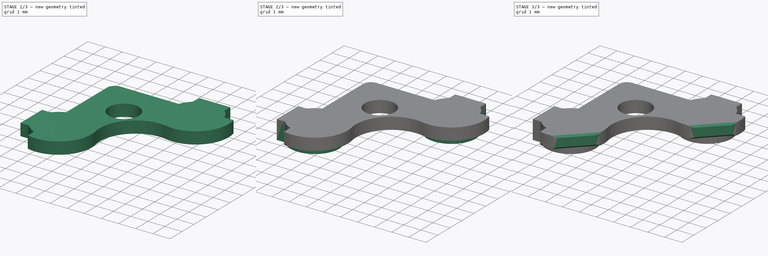
[diagram: build sequence overview — one tinted view per stage of 3, left to right]
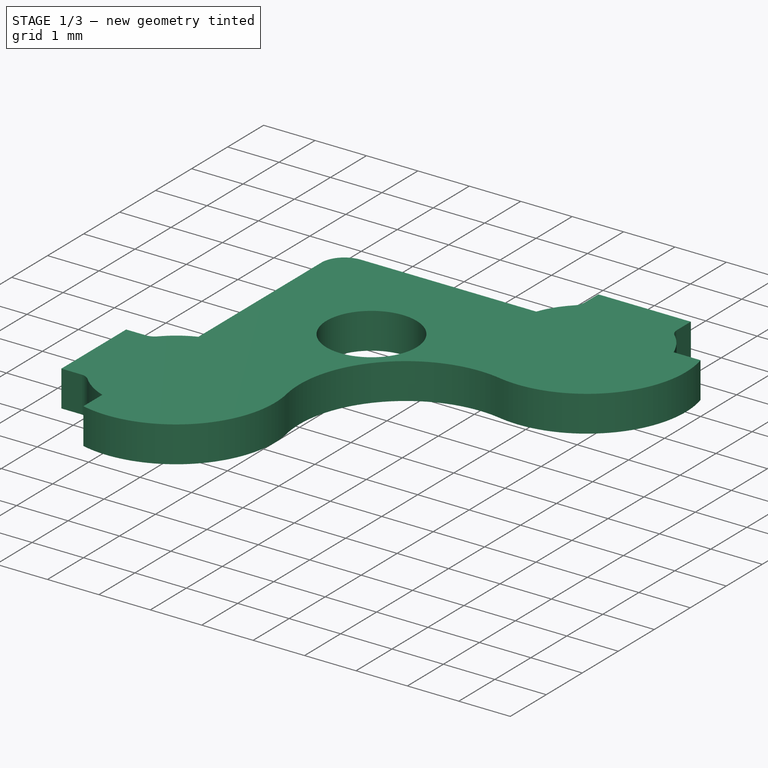
[diagram: stage 1 of 3 — iso view after this stage's code; geometry added in this stage tinted green]
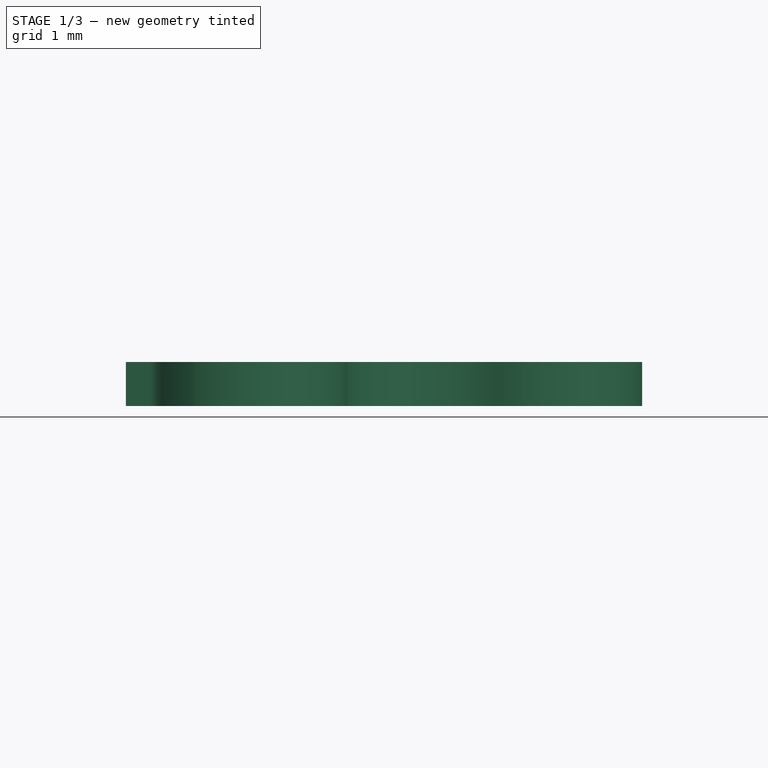
[diagram: stage 1 of 3 — front view after this stage's code; geometry added in this stage tinted green]
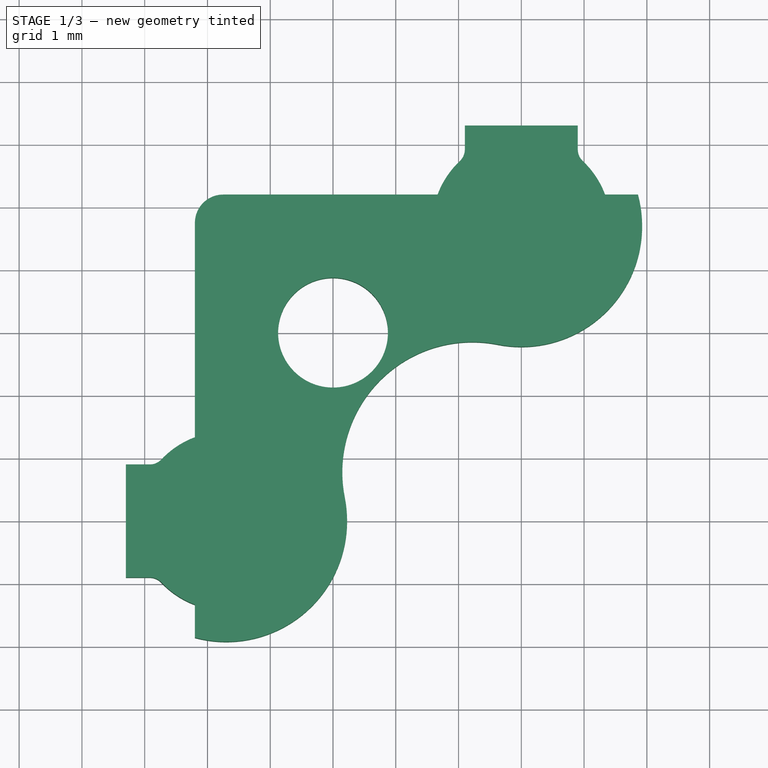
[diagram: stage 1 of 3 — top view after this stage's code; geometry added in this stage tinted green]
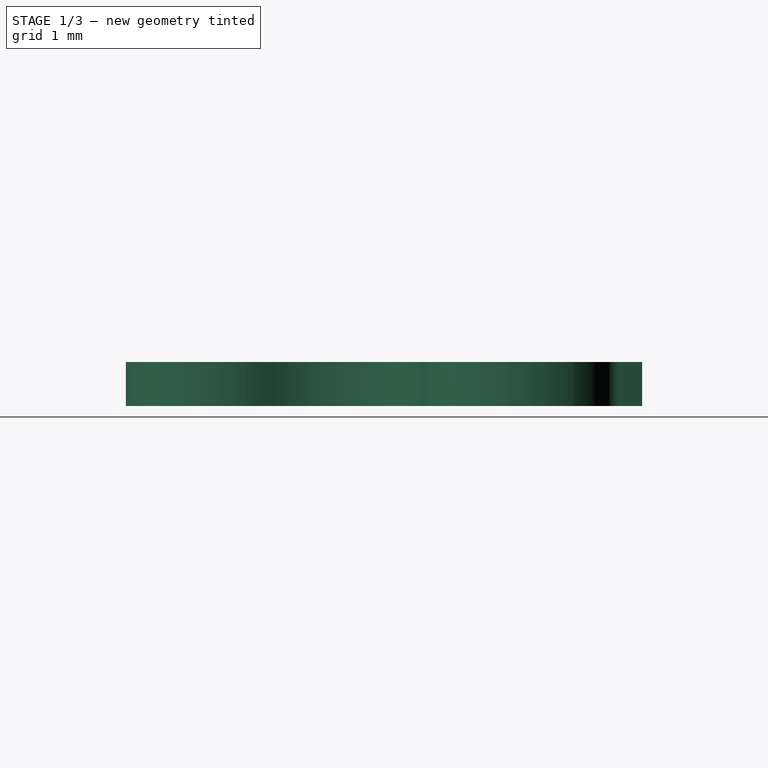
[diagram: stage 1 of 3 — right view after this stage's code; geometry added in this stage tinted green]
FCSTD DOCUMENT  (FreeCAD 1.0R38641 +468 (Git))
Label: PLASTIC-MAGNET-COVER
License: All rights reserved
LicenseURL: http://en.wikipedia.org/wiki/All_rights_reserved
objects: Sketcher::SketchObject×4, Spreadsheet::Sheet×2, PartDesign::Pad×2, PartDesign::Pocket×2, PartDesign::Chamfer×1, PartDesign::Body×1
note: 24 computed .brp shape members not serialized (recipe doc carries the construction recipe); baked Part::Feature solids carry a one-line shape summary decoded from their .brp

FEATURE [Spreadsheet::Sheet] Spreadsheet  label="Generic"
  cells = A1='Dimension; B1(dimension)==106.6 mm; A2='Corner Radius; B2(cornerRadius)=2; C2='(mm); A3='Screw Diameter; B3(screwDiameter)=2.2; C3='(mm); A4='Screw Diameter Plastic; B4(screwDiameterPlastic)=2.8; C4='(mm); A5='Screw Distance; B5(screwDistance)=101; C5='(mm)
FEATURE [Spreadsheet::Sheet] Spreadsheet001  label="Unibody"
  cells = A1='Height; B1(height)=15; C1='(mm); A5='Rib Length; B5(ribLength)=5; A6='Rib Width; B6(ribWidth)=1.5; A7='Rib Height; B7(ribHeight)=2.8; A8='Rib Dist 1; B8(ribDist1)=19.05; A9='Rib Dist 2; B9(ribDist2)=34.29; C9==1.35 in; A12='PCB Dimensions; B12(pcbDimensions)=100; A13='PCB Thickness; B13(pcbThickness)=1.6; A16='Feet Diameter; B16(feetDiameter)=10; A17='Feet Distance; B17(feetDistance)=85; A18='Feet Depth; B18(feetDepth)=0.5; A19='Feet Thickness; B19(feetThickness)=1
FEATURE [Sketcher::SketchObject] Sketch493
  ArcFitTolerance = 0
  AttachmentOffset = pos=(50,-50,0.5) rot=(0,0,1;0rad)
  AttachmentSupport = -> [XY_Plane137]
  FullyConstrained = true
  MakeInternals = false
  MapMode = 5
  Placement = pos=(50,-50,0.5) rot=(0,0,1;0rad)
  expr: Constraints[60] = 2 - 0.25
  expr: Constraints[75] = 4 - 0.15
  sketch-geometry (36):
    g0: LineSegment StartX=-53.3 StartY=47.9 StartZ=0 EndX=-53.3 EndY=46.1 EndZ=0
    g1: LineSegment StartX=-53.3 StartY=46.1 StartZ=0 EndX=-52.9178 EndY=46.1 EndZ=0
    g2: ArcOfCircle CenterX=-52.9178 CenterY=45.85 CenterZ=0 NormalX=0 NormalY=0 NormalZ=1 AngleXU=0 Radius=0.25 StartAngle=0.756757 EndAngle=1.5708
    g3: LineSegment StartX=-46.1 StartY=53.3 StartZ=0 EndX=-46.1 EndY=52.9178 EndZ=0
    g4: ArcOfCircle CenterX=-45.85 CenterY=52.9178 CenterZ=0 NormalX=0 NormalY=0 NormalZ=1 AngleXU=0 Radius=0.25 StartAngle=3.14159 EndAngle=3.95563
    g5: LineSegment StartX=-47.9 StartY=53.3 StartZ=0 EndX=-47.9 EndY=52.9178 EndZ=0
    g6: ArcOfCircle CenterX=-48.15 CenterY=52.9178 CenterZ=0 NormalX=0 NormalY=0 NormalZ=1 AngleXU=0 Radius=0.25 StartAngle=5.46915 EndAngle=6.28319
    g7: ArcOfCircle CenterX=-47 CenterY=51.7 CenterZ=0 NormalX=0 NormalY=0 NormalZ=1 AngleXU=0 Radius=1.425 StartAngle=2.32755 EndAngle=2.78308
    g8: LineSegment StartX=-48.3344 StartY=52.2 StartZ=0 EndX=-51.75 EndY=52.2 EndZ=0
    g9: LineSegment StartX=-52.2 StartY=51.75 StartZ=0 EndX=-52.2 EndY=48.3344 EndZ=0
    g10: Circle CenterX=-50 CenterY=50 CenterZ=0 NormalX=0 NormalY=0 NormalZ=1 AngleXU=0 Radius=0.875
    g11: LineSegment [constr] StartX=-47 StartY=51.7 StartZ=0 EndX=0 EndY=51.7 EndZ=0
    g12: LineSegment [constr] StartX=-47 StartY=51.7 StartZ=0 EndX=-47 EndY=0 EndZ=0
    g13: LineSegment [constr] StartX=-51.7 StartY=47 StartZ=0 EndX=-51.7 EndY=0 EndZ=0
    g14: LineSegment [constr] StartX=-51.7 StartY=47 StartZ=0 EndX=0 EndY=47 EndZ=0
    g15: LineSegment StartX=-47.9 StartY=53.3 StartZ=0 EndX=-46.1 EndY=53.3 EndZ=0
    g16: LineSegment [constr] StartX=-47.9 StartY=53.3 StartZ=0 EndX=-47 EndY=51.7 EndZ=0
    g17: LineSegment [constr] StartX=-47 StartY=51.7 StartZ=0 EndX=-46.1 EndY=53.3 EndZ=0
    g18: ArcOfCircle CenterX=-51.7 CenterY=47 CenterZ=0 NormalX=0 NormalY=0 NormalZ=1 AngleXU=0 Radius=1.425 StartAngle=1.9293 EndAngle=2.38484
    g19: ArcOfCircle CenterX=-52.9178 CenterY=48.15 CenterZ=0 NormalX=0 NormalY=0 NormalZ=1 AngleXU=0 Radius=0.25 StartAngle=4.71239 EndAngle=5.52643
    g20: LineSegment StartX=-52.9178 StartY=47.9 StartZ=0 EndX=-53.3 EndY=47.9 EndZ=0
    g21: LineSegment [constr] StartX=-53.3 StartY=47.9 StartZ=0 EndX=-51.7 EndY=47 EndZ=0
    g22: LineSegment [constr] StartX=-51.7 StartY=47 StartZ=0 EndX=-53.3 EndY=46.1 EndZ=0
    g23: LineSegment [constr] StartX=-50 StartY=50 StartZ=0 EndX=-47 EndY=51.7 EndZ=0
    g24: LineSegment [constr] StartX=-51.7 StartY=47 StartZ=0 EndX=-50 EndY=50 EndZ=0
    g25: ArcOfCircle CenterX=-51.7 CenterY=47 CenterZ=0 NormalX=0 NormalY=0 NormalZ=1 AngleXU=0 Radius=1.425 StartAngle=3.89835 EndAngle=4.35388
    g26: ArcOfCircle CenterX=-47 CenterY=51.7 CenterZ=0 NormalX=0 NormalY=0 NormalZ=1 AngleXU=0 Radius=1.425 StartAngle=0.358508 EndAngle=0.814039
    g27: LineSegment StartX=-52.2 StartY=45.6656 StartZ=0 EndX=-52.2 EndY=45.1411 EndZ=0
    g28: LineSegment StartX=-45.6656 StartY=52.2 StartZ=0 EndX=-45.1411 EndY=52.2 EndZ=0
    g29: LineSegment [constr] StartX=-47 StartY=51.7 StartZ=0 EndX=-47.3757 EndY=49.812 EndZ=0
    g30: ArcOfCircle CenterX=-47 CenterY=51.7 CenterZ=0 NormalX=0 NormalY=0 NormalZ=1 AngleXU=0 Radius=1.925 StartAngle=4.51597 EndAngle=6.54594
    g31: ArcOfCircle CenterX=-47.78 CenterY=47.78 CenterZ=0 NormalX=0 NormalY=0 NormalZ=1 AngleXU=0 Radius=2.07185 StartAngle=1.37438 EndAngle=3.33801
    g32: ArcOfCircle CenterX=-51.7 CenterY=47 CenterZ=0 NormalX=0 NormalY=0 NormalZ=1 AngleXU=0 Radius=1.925 StartAngle=4.44964 EndAngle=6.4796
    g33: LineSegment [constr] StartX=-48.3344 StartY=52.2 StartZ=0 EndX=-45.6656 EndY=52.2 EndZ=0
    g34: LineSegment [constr] StartX=-52.2 StartY=48.3344 StartZ=0 EndX=-52.2 EndY=45.6656 EndZ=0
    g35: ArcOfCircle CenterX=-51.75 CenterY=51.75 CenterZ=0 NormalX=0 NormalY=0 NormalZ=1 AngleXU=0 Radius=0.45 StartAngle=1.5708 EndAngle=3.14159
  constraints (95):
    c: Vertical(g0)
    c: Coincident(g0,g1)
    c: Horizontal(g1)
    c: Tangent(g1,g2) = 1.5708
    c: Tangent(g2,g25) = 1.5708
    c: Tangent(g3,g4) = -1.5708
    c: Tangent(g4,g26) = 1.5708
    c: Vertical(g5)
    c: Tangent(g5,g6) = 1.5708
    c: Tangent(g6,g7) = 1.5708
    c: Coincident(g8,g7)
    c: Horizontal(g8)
    c: Vertical(g9)
    c: PointOnObject(g11,g-2)
    c: Horizontal(g11)
    c: PointOnObject(g12,g-1)
    c: Vertical(g12)
    c: Coincident(g13,g25)
    c: PointOnObject(g13,g-1)
    c: Vertical(g13)
    c: Coincident(g14,g25)
    c: PointOnObject(g14,g-2)
    c: Horizontal(g14)
    c: Coincident(g5,g15)
    c: Coincident(g15,g3)
    c: Horizontal(g15)
    c: Vertical(g3)
    c: DistanceX(g11,g11) = 47
    c: Equal(g11,g13)
    c: DistanceY(g12,g12) = 51.7
    c: Coincident(g5,g16)
    c: Coincident(g16,g17)
    c: Coincident(g17,g3)
    c: Equal(g16,g17)
    c: DistanceY(g-1,g3) = 53.3
    c: Equal(g14,g12)
    c: Coincident(g18,g25)
    c: Coincident(g18,g9)
    c: Tangent(g19,g18) = 1.5708
    c: Horizontal(g20)
    c: Tangent(g20,g19) = 1.5708
    c: Coincident(g0,g20)
    c: DistanceX(g15,g15) = 1.8
    c: Coincident(g0,g21)
    c: Coincident(g21,g25)
    c: Coincident(g21,g22)
    c: Coincident(g22,g0)
    c: Equal(g22,g21)
    c: Equal(g0,g15)
    c: Equal(g16,g21)
    c: Equal(g20,g5)
    c: Equal(g5,g3)
    c: Equal(g3,g1)
    c: Radius(g6) = 0.25
    c: Equal(g8,g9)
    c: Coincident(g23,g10)
    c: Coincident(g24,g25)
    c: Coincident(g24,g10)
    c: Equal(g24,g23)
    c: DistanceX(g10,g-1) = 50
    c: Diameter(g10) = 1.75
    c: DistanceY(g-1,g7) = 52.2
    c: Equal(g18,g25)
    c: Diameter(g26) = 2.85
    c: Equal(g26,g7)
    c: Equal(g25,g26)
    c: Coincident(g27,g25)
    c: Vertical(g27)
    c: Coincident(g28,g26)
    c: Horizontal(g28)
    c: Coincident(g29,g7)
    c: Coincident(g30,g7)
    c: Coincident(g30,g28)
    c: Coincident(g30,g29)
    c: Tangent(g31,g30) = 1.5708
    c: Diameter(g30) = 3.85
    c: Coincident(g7,g16)
    c: Coincident(g26,g11)
    c: Coincident(g7,g26)
    c: Coincident(g7,g12)
    c: Coincident(g32,g18)
    c: Coincident(g32,g27)
    c: Equal(g32,g30)
    c: Tangent(g31,g32) = 1.5708
    c: Coincident(g33,g7)
    c: Coincident(g33,g26)
    c: Horizontal(g33)
    c: Coincident(g34,g9)
    c: Coincident(g34,g25)
    c: Vertical(g34)
    c: Coincident(g23,g7)
    c: Tangent(g9,g35) = -1.5708
    c: Tangent(g8,g35) = -1.5708
    c: Radius(g35) = 0.45
    c: DistanceX(g31,g-1) = 47.78
FEATURE [PartDesign::Pad] Pad402
  Direction = (0,0,1)
  Length = 2
  Length2 = 10
  Midplane = true
  Profile = -> Sketch493
  ReferenceAxis = -> Sketch493 [N_Axis]
  Suppressed = false
  Type = 0
FEATURE [Sketcher::SketchObject] Sketch494
  ArcFitTolerance = 0
  AttachmentOffset = pos=(50,-50,1.5) rot=(0,0,1;0rad)
  AttachmentSupport = -> [XY_Plane137]
  FullyConstrained = true
  MakeInternals = false
  MapMode = 5
  Placement = pos=(50,-50,1.5) rot=(0,0,1;0rad)
  sketch-geometry (5):
    g0: LineSegment StartX=0 StartY=0 StartZ=0 EndX=-100 EndY=0 EndZ=0
    g1: LineSegment StartX=-100 StartY=0 StartZ=0 EndX=-100 EndY=51.8 EndZ=0
    g2: LineSegment StartX=-51.8 StartY=100 StartZ=0 EndX=0 EndY=100 EndZ=0
    g3: LineSegment StartX=0 StartY=100 StartZ=0 EndX=0 EndY=0 EndZ=0
    g4: ArcOfCircle CenterX=-51.8 CenterY=51.8 CenterZ=0 NormalX=0 NormalY=0 NormalZ=1 AngleXU=0 Radius=48.2 StartAngle=1.5708 EndAngle=3.14159
  constraints (13):
    c: Coincident(g0,g1)
    c: Coincident(g2,g3)
    c: Coincident(g3,g0)
    c: Horizontal(g0)
    c: Horizontal(g2)
    c: Vertical(g1)
    c: Vertical(g3)
    c: Coincident(g0,g-1)
    c: Tangent(g1,g4) = 1.5708
    c: Tangent(g2,g4) = 1.5708
    c: Equal(g1,g2)
    c: DistanceY(g3,g3) = 100
    c: DistanceX(g4,g0) = 51.8
FEATURE [PartDesign::Pocket] Pocket036
  BaseFeature = -> Pad402
  Direction = (0,0,-1)
  Length = 1.3
  Length2 = 5
  Profile = -> Sketch494
  ReferenceAxis = -> Sketch494 [N_Axis]
  Suppressed = false
  Type = 0
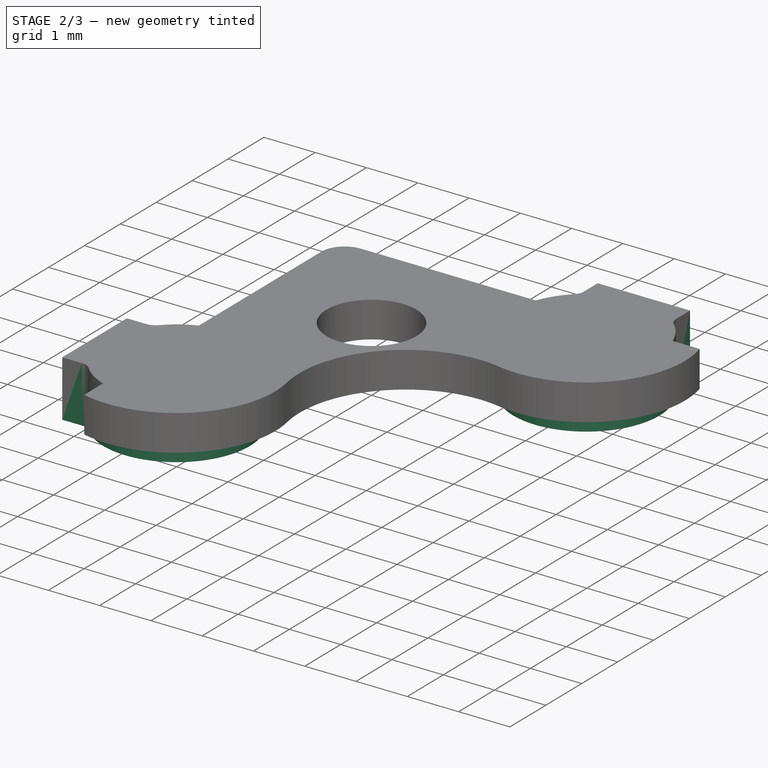
[diagram: stage 2 of 3 — iso view after this stage's code; geometry added in this stage tinted green]
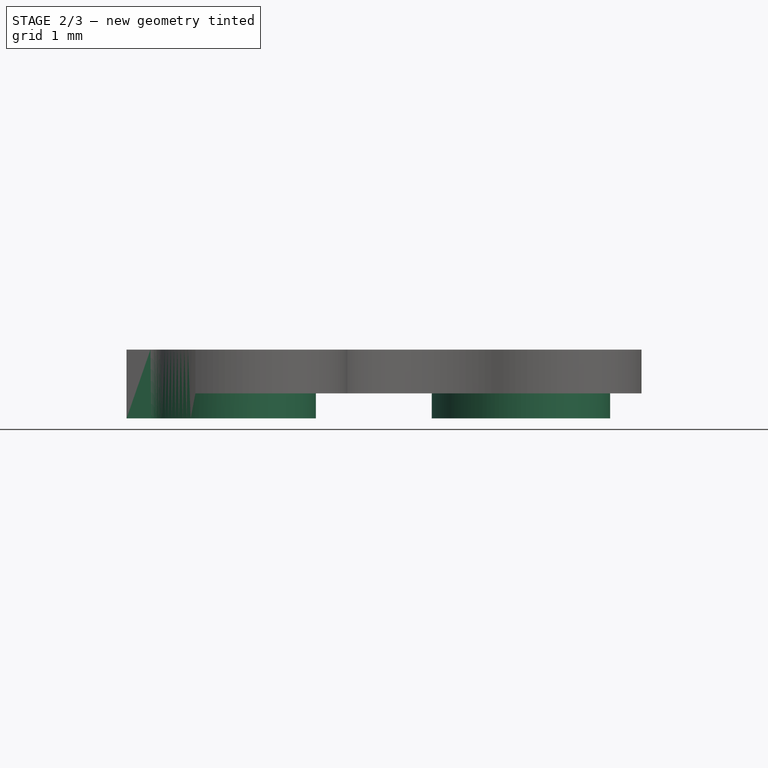
[diagram: stage 2 of 3 — front view after this stage's code; geometry added in this stage tinted green]
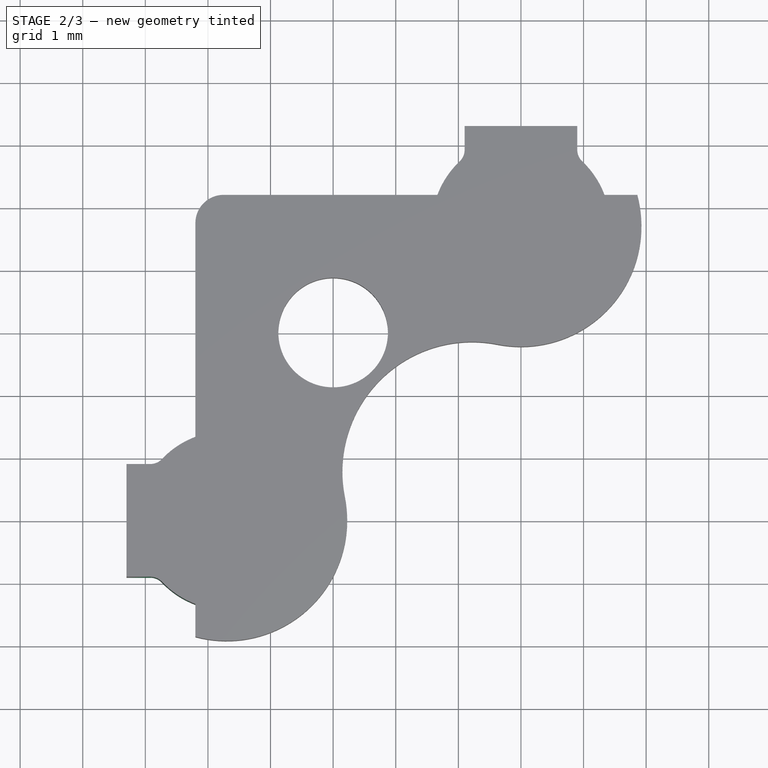
[diagram: stage 2 of 3 — top view after this stage's code; geometry added in this stage tinted green]
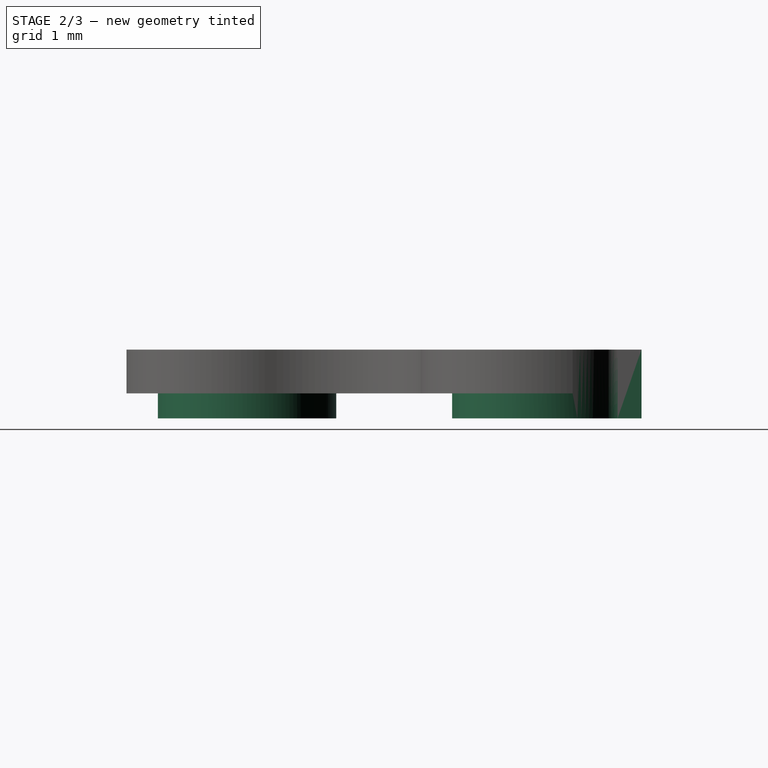
[diagram: stage 2 of 3 — right view after this stage's code; geometry added in this stage tinted green]
FEATURE [Sketcher::SketchObject] Sketch497
  ArcFitTolerance = 0
  AttachmentOffset = pos=(50,-50,0) rot=(0,0,1;0rad)
  AttachmentSupport = -> [XY_Plane137]
  FullyConstrained = true
  MakeInternals = false
  MapMode = 5
  Placement = pos=(50,-50,0) rot=(0,0,1;0rad)
  sketch-geometry (23):
    g0: LineSegment StartX=-53.3 StartY=47.9 StartZ=0 EndX=-53.3 EndY=46.1 EndZ=0
    g1: LineSegment StartX=-53.3 StartY=46.1 StartZ=0 EndX=-52.9178 EndY=46.1 EndZ=0
    g2: ArcOfCircle CenterX=-52.9178 CenterY=45.85 CenterZ=0 NormalX=0 NormalY=0 NormalZ=1 AngleXU=0 Radius=0.25 StartAngle=0.756757 EndAngle=1.5708
    g3: LineSegment StartX=-46.1 StartY=53.3 StartZ=0 EndX=-46.1 EndY=52.9178 EndZ=0
    g4: ArcOfCircle CenterX=-45.85 CenterY=52.9178 CenterZ=0 NormalX=0 NormalY=0 NormalZ=1 AngleXU=0 Radius=0.25 StartAngle=3.14159 EndAngle=3.95563
    g5: LineSegment StartX=-47.9 StartY=53.3 StartZ=0 EndX=-47.9 EndY=52.9178 EndZ=0
    g6: ArcOfCircle CenterX=-48.15 CenterY=52.9178 CenterZ=0 NormalX=0 NormalY=0 NormalZ=1 AngleXU=0 Radius=0.25 StartAngle=5.46915 EndAngle=6.28319
    g7: Circle [constr] CenterX=-50 CenterY=50 CenterZ=0 NormalX=0 NormalY=0 NormalZ=1 AngleXU=0 Radius=1
    g8: LineSegment [constr] StartX=-47 StartY=51.7 StartZ=0 EndX=0 EndY=51.7 EndZ=0
    g9: LineSegment [constr] StartX=-47 StartY=51.7 StartZ=0 EndX=-47 EndY=0 EndZ=0
    g10: LineSegment [constr] StartX=-51.7 StartY=47 StartZ=0 EndX=-51.7 EndY=0 EndZ=0
    g11: LineSegment [constr] StartX=-51.7 StartY=47 StartZ=0 EndX=0 EndY=47 EndZ=0
    g12: LineSegment StartX=-47.9 StartY=53.3 StartZ=0 EndX=-46.1 EndY=53.3 EndZ=0
    g13: LineSegment [constr] StartX=-47.9 StartY=53.3 StartZ=0 EndX=-47 EndY=51.7 EndZ=0
    g14: LineSegment [constr] StartX=-47 StartY=51.7 StartZ=0 EndX=-46.1 EndY=53.3 EndZ=0
    g15: ArcOfCircle CenterX=-52.9178 CenterY=48.15 CenterZ=0 NormalX=0 NormalY=0 NormalZ=1 AngleXU=0 Radius=0.25 StartAngle=4.71239 EndAngle=5.52643
    g16: LineSegment StartX=-52.9178 StartY=47.9 StartZ=0 EndX=-53.3 EndY=47.9 EndZ=0
    g17: LineSegment [constr] StartX=-53.3 StartY=47.9 StartZ=0 EndX=-51.7 EndY=47 EndZ=0
    g18: LineSegment [constr] StartX=-51.7 StartY=47 StartZ=0 EndX=-53.3 EndY=46.1 EndZ=0
    g19: LineSegment [constr] StartX=-50 StartY=50 StartZ=0 EndX=-47 EndY=51.7 EndZ=0
    g20: LineSegment [constr] StartX=-51.7 StartY=47 StartZ=0 EndX=-50 EndY=50 EndZ=0
    g21: ArcOfCircle CenterX=-51.7 CenterY=47 CenterZ=0 NormalX=0 NormalY=0 NormalZ=1 AngleXU=0 Radius=1.425 StartAngle=3.89835 EndAngle=8.66802
    g22: ArcOfCircle CenterX=-47 CenterY=51.7 CenterZ=0 NormalX=0 NormalY=0 NormalZ=1 AngleXU=0 Radius=1.425 StartAngle=2.32755 EndAngle=7.09722
  constraints (61):
    c: Vertical(g0)
    c: Coincident(g0,g1)
    c: Horizontal(g1)
    c: Tangent(g1,g2) = 1.5708
    c: Tangent(g2,g21) = 1.5708
    c: Tangent(g3,g4) = -1.5708
    c: Tangent(g4,g22) = 1.5708
    c: Vertical(g5)
    c: Tangent(g5,g6) = 1.5708
    c: PointOnObject(g8,g-2)
    c: Horizontal(g8)
    c: PointOnObject(g9,g-1)
    c: Vertical(g9)
    c: Coincident(g10,g21)
    c: PointOnObject(g10,g-1)
    c: Vertical(g10)
    c: Coincident(g11,g21)
    c: PointOnObject(g11,g-2)
    c: Horizontal(g11)
    c: Coincident(g5,g12)
    c: Coincident(g12,g3)
    c: Horizontal(g12)
    c: Vertical(g3)
    c: DistanceX(g8,g8) = 47
    c: Equal(g8,g10)
    c: DistanceY(g9,g9) = 51.7
    c: Coincident(g5,g13)
    c: Coincident(g13,g14)
    c: Coincident(g14,g3)
    c: Equal(g13,g14)
    c: DistanceY(g-1,g3) = 53.3
    c: Equal(g11,g9)
    c: Horizontal(g16)
    c: Tangent(g16,g15) = 1.5708
    c: Coincident(g0,g16)
    c: DistanceX(g12,g12) = 1.8
    c: Coincident(g0,g17)
    c: Coincident(g17,g21)
    c: Coincident(g17,g18)
    c: Coincident(g18,g0)
    c: Equal(g18,g17)
    c: Equal(g0,g12)
    c: Equal(g13,g17)
    c: Equal(g16,g5)
    c: Equal(g5,g3)
    c: Equal(g3,g1)
    c: Radius(g6) = 0.25
    c: Coincident(g19,g7)
    c: Coincident(g20,g21)
    c: Coincident(g20,g7)
    c: Equal(g20,g19)
    c: DistanceX(g7,g-1) = 50
    c: Diameter(g7) = 2
    c: Diameter(g22) = 2.85
    c: Equal(g21,g22)
    c: Coincident(g22,g8)
    c: Coincident(g9,g13)
    c: Coincident(g22,g9)
    c: Tangent(g22,g6) = 1.5708
    c: Tangent(g21,g15) = 1.5708
    c: Coincident(g19,g22)
FEATURE [PartDesign::Pad] Pad
  BaseFeature = -> Pocket036
  Direction = (0,0,1)
  Length = 0.9
  Length2 = 10
  Profile = -> Sketch497
  ReferenceAxis = -> Sketch497 [N_Axis]
  Refine = true
  Reversed = true
  Suppressed = false
  Type = 0
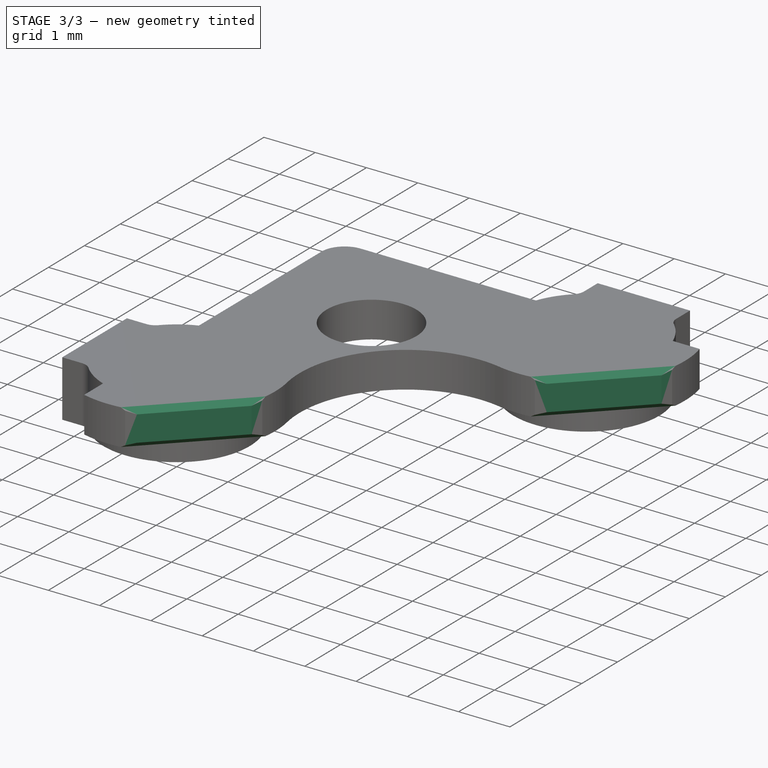
[diagram: stage 3 of 3 — iso view after this stage's code; geometry added in this stage tinted green]
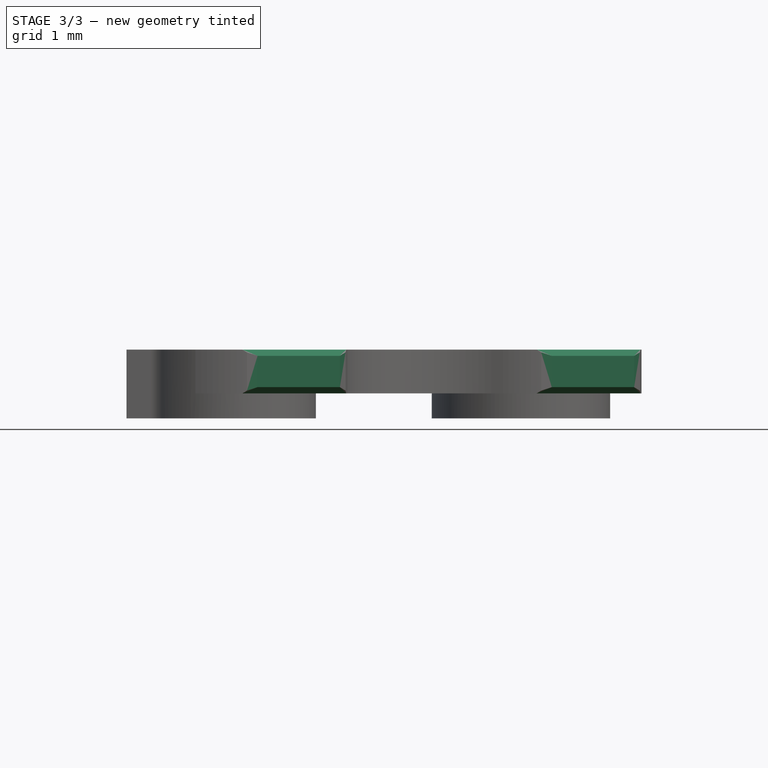
[diagram: stage 3 of 3 — front view after this stage's code; geometry added in this stage tinted green]
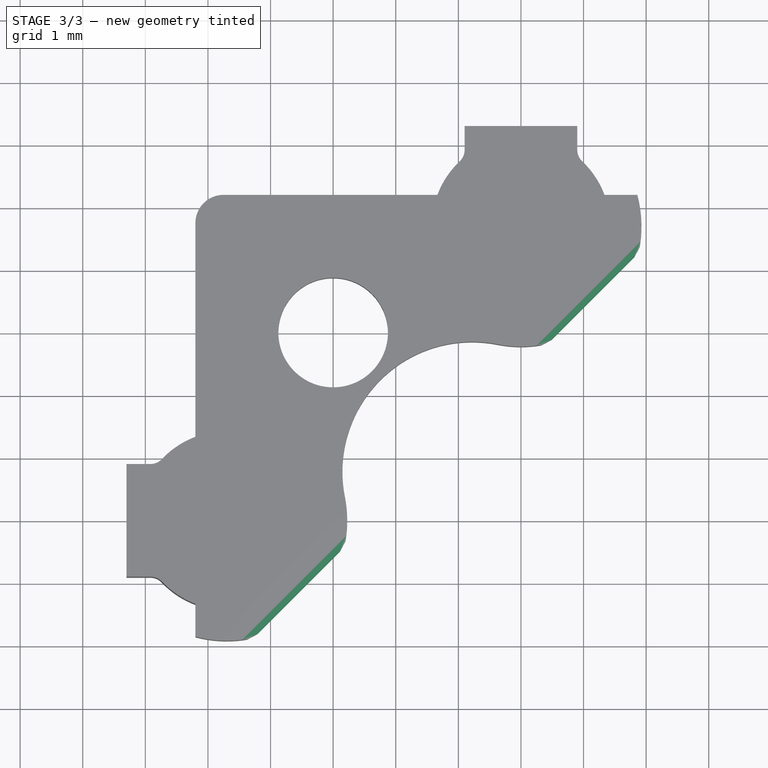
[diagram: stage 3 of 3 — top view after this stage's code; geometry added in this stage tinted green]
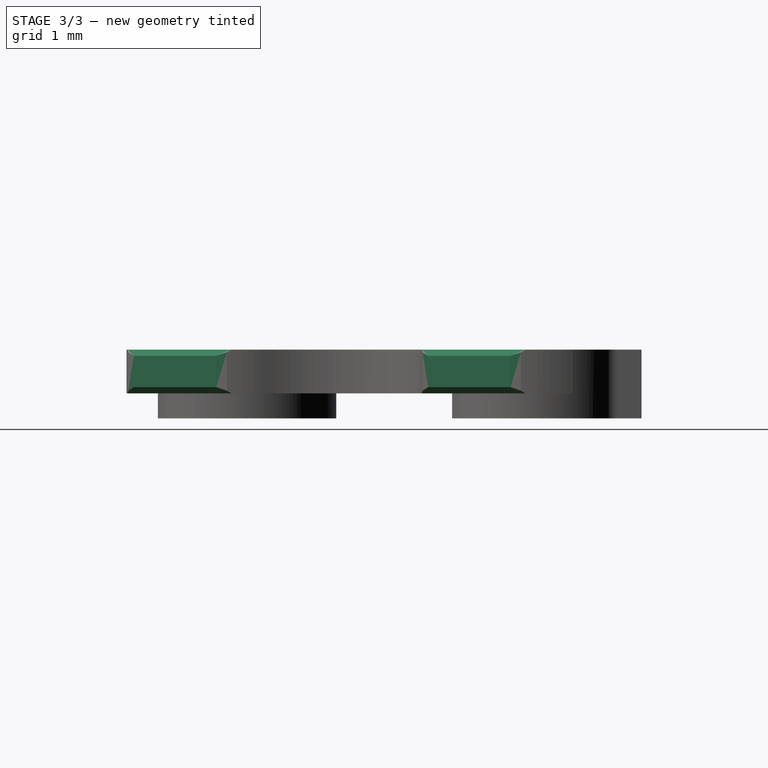
[diagram: stage 3 of 3 — right view after this stage's code; geometry added in this stage tinted green]
FEATURE [Sketcher::SketchObject] Sketch
  ArcFitTolerance = 0
  AttachmentOffset = pos=(50,-50,0) rot=(0,0,1;0rad)
  AttachmentSupport = -> [XY_Plane137]
  FullyConstrained = true
  MakeInternals = false
  MapMode = 5
  Placement = pos=(50,-50,0) rot=(0,0,1;0rad)
  sketch-geometry (6):
    g0: LineSegment StartX=-52.2 StartY=44.2 StartZ=0 EndX=-44.2 EndY=52.2 EndZ=0
    g1: LineSegment [constr] StartX=-52.2 StartY=44.2 StartZ=0 EndX=-52.2 EndY=52.2 EndZ=0
    g2: LineSegment [constr] StartX=-52.2 StartY=52.2 StartZ=0 EndX=-44.2 EndY=52.2 EndZ=0
    g3: LineSegment StartX=-52.2 StartY=44.2 StartZ=0 EndX=-52.2 EndY=42 EndZ=0
    g4: LineSegment StartX=-44.2 StartY=52.2 StartZ=0 EndX=-42 EndY=52.2 EndZ=0
    g5: LineSegment StartX=-42 StartY=52.2 StartZ=0 EndX=-52.2 EndY=42 EndZ=0
  constraints (17):
    c: Angle(g-1,g0) = 0.785398
    c: Vertical(g1)
    c: Coincident(g2,g0)
    c: Horizontal(g2)
    c: Coincident(g1,g2)
    c: Coincident(g0,g1)
    c: DistanceY(g-1,g1) = 52.2
    c: DistanceX(g1,g-1) = 52.2
    c: Coincident(g3,g0)
    c: Vertical(g3)
    c: Coincident(g4,g0)
    c: Coincident(g5,g4)
    c: Coincident(g5,g3)
    c: Horizontal(g4)
    c: DistanceY(g1,g1) = 8
    c: Equal(g3,g4)
    c: DistanceX(g4,g4) = 2.2
FEATURE [PartDesign::Pocket] Pocket
  BaseFeature = -> Pad
  Direction = (0,0,-1)
  Length = 5
  Length2 = 5
  Midplane = true
  Profile = -> Sketch
  ReferenceAxis = -> Sketch [N_Axis]
  Suppressed = false
  Type = 0
FEATURE [PartDesign::Chamfer] Chamfer
  Angle = 45
  Base = -> Pocket [Face14,Face18]
  BaseFeature = -> Pocket
  ChamferType = 0
  FlipDirection = false
  Size = 0.1
  Size2 = 1
  SupportTransform = false
  Suppressed = false
  UseAllEdges = false
FEATURE [PartDesign::Body] Body111  label="PLASTIC-MAGNET-COVER"
  AllowCompound = false
  Group = -> [Sketch493,Pad402,Sketch494,Pocket036,Sketch497,Pad,Sketch,Pocket,Chamfer]
  Origin = -> Origin137
  Tip = -> Chamfer
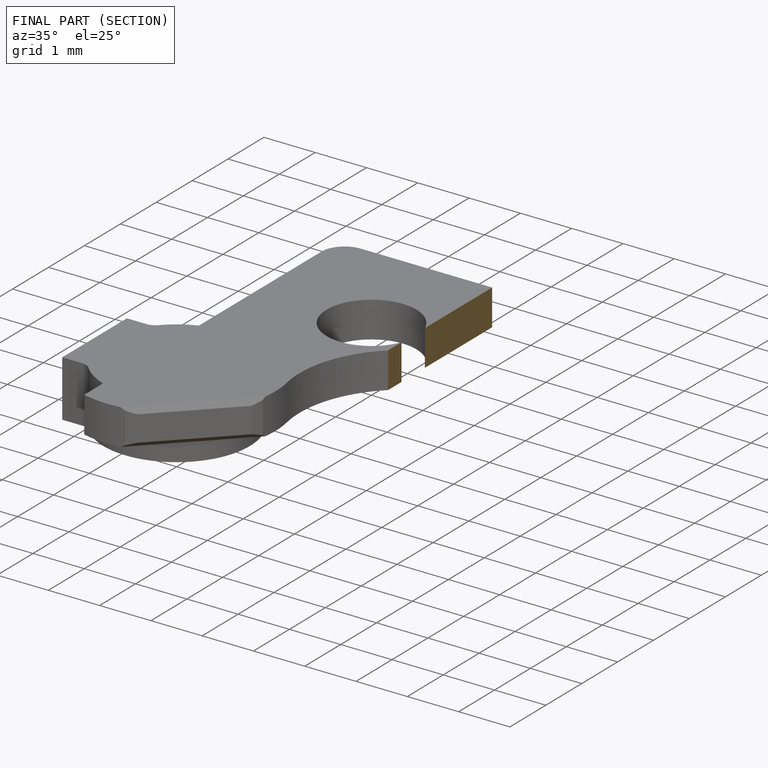
[diagram: finished part — half-section view (interior)]
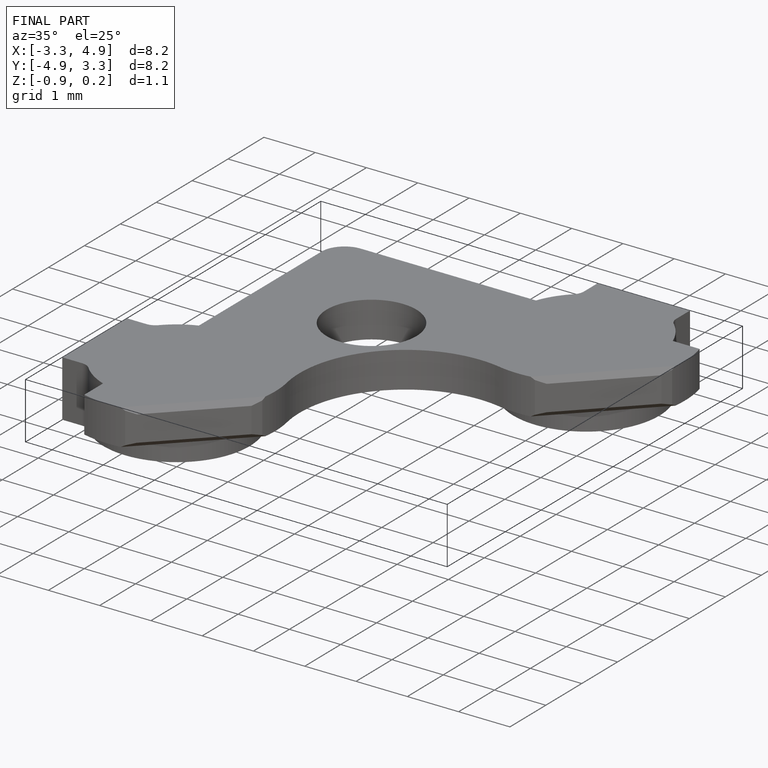
[diagram: finished part — iso view with bounding-box wireframe]
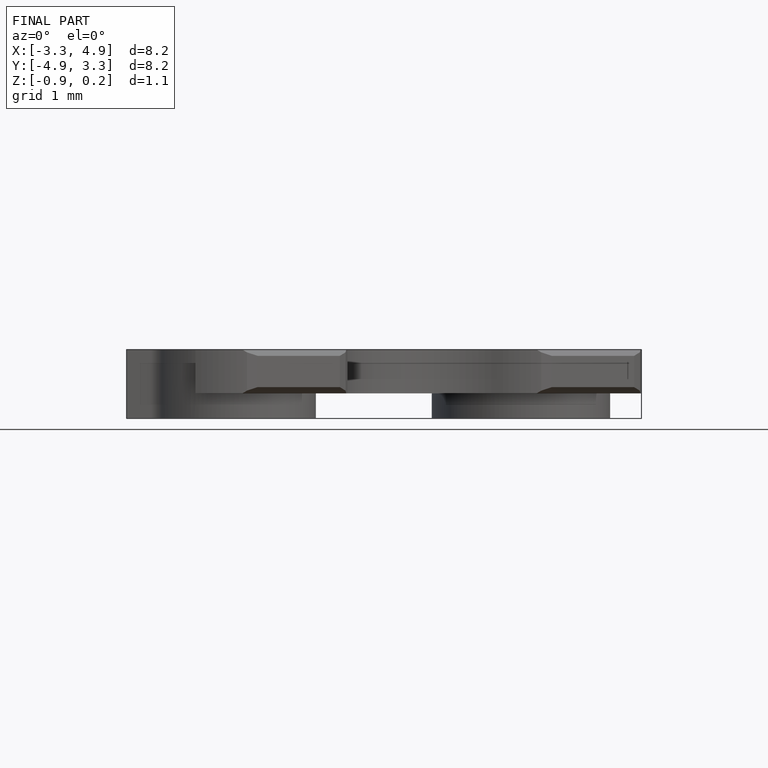
[diagram: finished part — front view with bounding-box wireframe]
